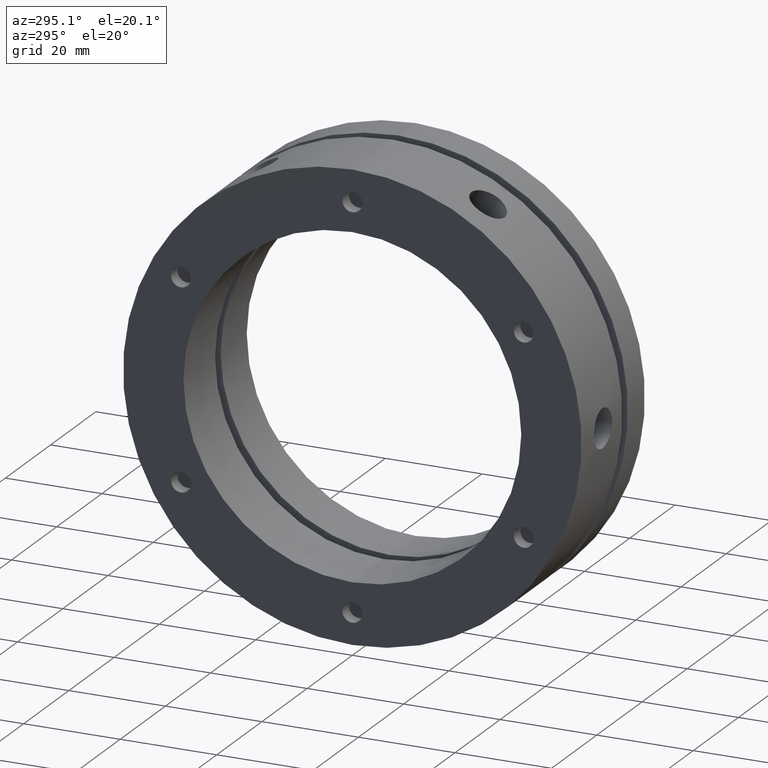
[diagram: clean part render]
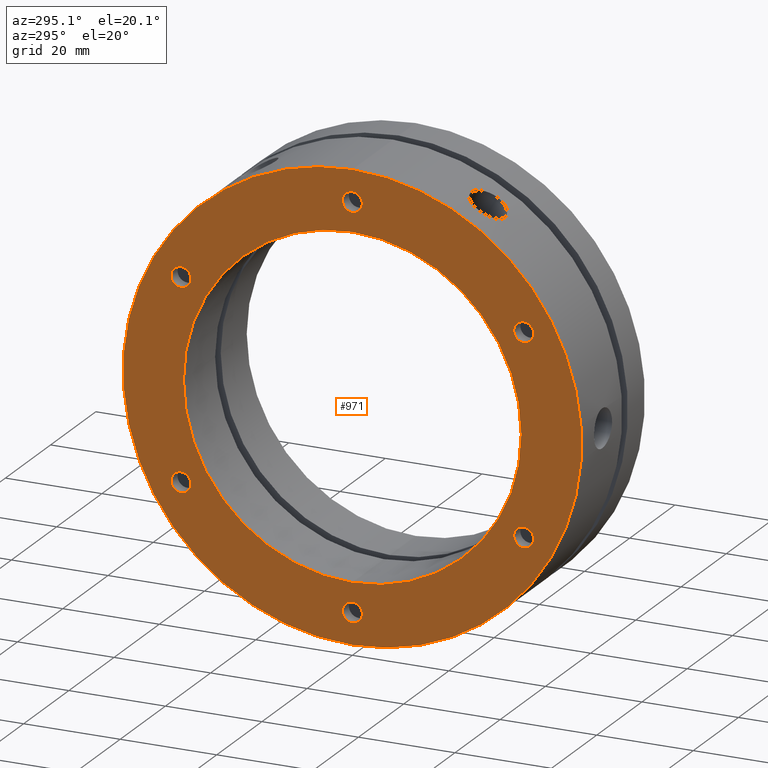
[diagram: same view with one face highlighted and labeled with its STEP entity id]
A machine part, auxiliary view. The second image highlights one B-rep face of the part: STEP entity #971.
In plain terms, the highlighted planar face has unit normal (-1, 0, 0).
Its self-contained STEP definition (entity closure, byte-faithful):
#39 = VERTEX_POINT ( 'NONE', #1383 ) ;
#50 = VERTEX_POINT ( 'NONE', #1386 ) ;
#54 = VERTEX_POINT ( 'NONE', #1385 ) ;
#75 = VERTEX_POINT ( 'NONE', #1402 ) ;
#101 = VERTEX_POINT ( 'NONE', #1426 ) ;
#117 = VERTEX_POINT ( 'NONE', #1440 ) ;
#127 = VERTEX_POINT ( 'NONE', #1435 ) ;
#133 = VERTEX_POINT ( 'NONE', #1446 ) ;
#186 = VERTEX_POINT ( 'NONE', #1495 ) ;
#221 = VERTEX_POINT ( 'NONE', #1529 ) ;
#223 = VERTEX_POINT ( 'NONE', #1531 ) ;
#237 = VERTEX_POINT ( 'NONE', #1542 ) ;
#238 = VERTEX_POINT ( 'NONE', #1543 ) ;
#239 = VERTEX_POINT ( 'NONE', #1544 ) ;
#266 = VERTEX_POINT ( 'NONE', #1570 ) ;
#267 = VERTEX_POINT ( 'NONE', #1563 ) ;
#403 = AXIS2_PLACEMENT_3D ( 'NONE', #3826, #3827, #3828 ) ;
#412 = AXIS2_PLACEMENT_3D ( 'NONE', #3855, #3856, #3857 ) ;
#463 = AXIS2_PLACEMENT_3D ( 'NONE', #2323, #2325, #2332 ) ;
#971 = ADVANCED_FACE ( 'NONE', ( #3132, #3136, #3133, #3129, #3134, #3137, #3138, #3139 ), #2330, .T. ) ;
#1383 = CARTESIAN_POINT ( 'NONE',  ( -1.127570259384924600E-014, -6.661337999999999900E-015, -38.93300000000002800 ) ) ;
#1385 = CARTESIAN_POINT ( 'NONE',  ( -1.387778780781445700E-014, 0.0000000000000000000, -47.50000000000000000 ) ) ;
#1386 = CARTESIAN_POINT ( 'NONE',  ( -1.127570259384924600E-014, 35.50704155516203300, 22.56699999999999000 ) ) ;
#1402 = CARTESIAN_POINT ( 'NONE',  ( -1.127570259384924600E-014, -35.50704155516201900, -22.56700000000000700 ) ) ;
#1426 = CARTESIAN_POINT ( 'NONE',  ( -1.127570259384924600E-014, 35.50704155516199700, -18.43300000000003500 ) ) ;
#1435 = CARTESIAN_POINT ( 'NONE',  ( -1.127570259384924600E-014, -6.408203506616242300E-015, -43.06700000000002900 ) ) ;
#1440 = CARTESIAN_POINT ( 'NONE',  ( -1.040834085586084300E-014, 4.286263797015736500E-015, 35.00000000000000000 ) ) ;
#1446 = CARTESIAN_POINT ( 'NONE',  ( -1.127570259384924600E-014, 35.50704155516203300, 18.43299999999999300 ) ) ;
#1495 = CARTESIAN_POINT ( 'NONE',  ( -1.127570259384924600E-014, 35.50704155516199700, -22.56700000000003600 ) ) ;
#1529 = CARTESIAN_POINT ( 'NONE',  ( -1.127570259384924600E-014, -35.50704155516201900, -18.43300000000000700 ) ) ;
#1531 = CARTESIAN_POINT ( 'NONE',  ( -1.127570259384924600E-014, 2.531344933837580300E-016, 38.93300000000002800 ) ) ;
#1542 = CARTESIAN_POINT ( 'NONE',  ( -1.387778780781445700E-014, 5.817072295949928200E-015, 47.50000000000000000 ) ) ;
#1543 = CARTESIAN_POINT ( 'NONE',  ( -1.040834085586084300E-014, 0.0000000000000000000, -35.00000000000000000 ) ) ;
#1544 = CARTESIAN_POINT ( 'NONE',  ( -1.127570259384924600E-014, -35.50704155516201200, 22.56700000000002100 ) ) ;
#1563 = CARTESIAN_POINT ( 'NONE',  ( -1.127570259384924600E-014, 0.0000000000000000000, 43.06700000000002900 ) ) ;
#1570 = CARTESIAN_POINT ( 'NONE',  ( -1.127570259384924600E-014, -35.50704155516201200, 18.43300000000002100 ) ) ;
#1786 = CIRCLE ( 'NONE', #1900, 47.50000000000000000 ) ;
#1793 = CIRCLE ( 'NONE', #1903, 2.066999999999999300 ) ;
#1794 = CIRCLE ( 'NONE', #1902, 35.00000000000000000 ) ;
#1795 = CIRCLE ( 'NONE', #1904, 2.066999999999999300 ) ;
#1822 = CIRCLE ( 'NONE', #1930, 2.066999999999999300 ) ;
#1823 = CIRCLE ( 'NONE', #1933, 2.066999999999999300 ) ;
#1824 = CIRCLE ( 'NONE', #1932, 2.066999999999999300 ) ;
#1857 = CIRCLE ( 'NONE', #1942, 2.066999999999999300 ) ;
#1861 = CIRCLE ( 'NONE', #1943, 35.00000000000000000 ) ;
#1881 = CIRCLE ( 'NONE', #1947, 2.066999999999999300 ) ;
#1883 = CIRCLE ( 'NONE', #1949, 2.066999999999999300 ) ;
#1890 = CIRCLE ( 'NONE', #1951, 2.066999999999999300 ) ;
#1895 = CIRCLE ( 'NONE', #1953, 2.066999999999999300 ) ;
#1900 = AXIS2_PLACEMENT_3D ( 'NONE', #2705, #2706, #2707 ) ;
#1902 = AXIS2_PLACEMENT_3D ( 'NONE', #2809, #2810, #2811 ) ;
#1903 = AXIS2_PLACEMENT_3D ( 'NONE', #2812, #2813, #2814 ) ;
#1904 = AXIS2_PLACEMENT_3D ( 'NONE', #2815, #2816, #2817 ) ;
#1930 = AXIS2_PLACEMENT_3D ( 'NONE', #2894, #2895, #2896 ) ;
#1932 = AXIS2_PLACEMENT_3D ( 'NONE', #2900, #2901, #2902 ) ;
#1933 = AXIS2_PLACEMENT_3D ( 'NONE', #2903, #2904, #2905 ) ;
#1942 = AXIS2_PLACEMENT_3D ( 'NONE', #3689, #3690, #3691 ) ;
#1943 = AXIS2_PLACEMENT_3D ( 'NONE', #3693, #3694, #3695 ) ;
#1947 = AXIS2_PLACEMENT_3D ( 'NONE', #3719, #3720, #3721 ) ;
#1949 = AXIS2_PLACEMENT_3D ( 'NONE', #3727, #3728, #3729 ) ;
#1951 = AXIS2_PLACEMENT_3D ( 'NONE', #3739, #3740, #3741 ) ;
#1953 = AXIS2_PLACEMENT_3D ( 'NONE', #3748, #3749, #3750 ) ;
#1954 = AXIS2_PLACEMENT_3D ( 'NONE', #3752, #3753, #3754 ) ;
#2323 = CARTESIAN_POINT ( 'NONE',  ( -1.157234000000000000E-014, 41.25000000000000000, 0.0000000000000000000 ) ) ;
#2325 = DIRECTION ( 'NONE',  ( -1.000000000000000000, 0.0000000000000000000, 0.0000000000000000000 ) ) ;
#2330 = PLANE ( 'NONE',  #463 ) ;
#2332 = DIRECTION ( 'NONE',  ( 0.0000000000000000000, 0.0000000000000000000, 1.000000000000000000 ) ) ;
#2705 = CARTESIAN_POINT ( 'NONE',  ( -1.387778780781445700E-014, 0.0000000000000000000, 0.0000000000000000000 ) ) ;
#2706 = DIRECTION ( 'NONE',  ( 1.000000000000000000, 0.0000000000000000000, 0.0000000000000000000 ) ) ;
#2707 = DIRECTION ( 'NONE',  ( 0.0000000000000000000, 0.0000000000000000000, -1.000000000000000000 ) ) ;
#2809 = CARTESIAN_POINT ( 'NONE',  ( -1.040834085586084300E-014, 0.0000000000000000000, 0.0000000000000000000 ) ) ;
#2810 = DIRECTION ( 'NONE',  ( 1.000000000000000000, 0.0000000000000000000, 0.0000000000000000000 ) ) ;
#2811 = DIRECTION ( 'NONE',  ( 0.0000000000000000000, 0.0000000000000000000, -1.000000000000000000 ) ) ;
#2812 = CARTESIAN_POINT ( 'NONE',  ( -1.127570259384924600E-014, 0.0000000000000000000, 41.00000000000002800 ) ) ;
#2813 = DIRECTION ( 'NONE',  ( 1.000000000000000000, -0.0000000000000000000, -0.0000000000000000000 ) ) ;
#2814 = DIRECTION ( 'NONE',  ( 0.0000000000000000000, 0.0000000000000000000, 1.000000000000000000 ) ) ;
#2815 = CARTESIAN_POINT ( 'NONE',  ( -1.127570259384924600E-014, -35.50704155516201200, 20.50000000000002100 ) ) ;
#2816 = DIRECTION ( 'NONE',  ( 1.000000000000000000, -0.0000000000000000000, -0.0000000000000000000 ) ) ;
#2817 = DIRECTION ( 'NONE',  ( 0.0000000000000000000, 0.0000000000000000000, 1.000000000000000000 ) ) ;
#2894 = CARTESIAN_POINT ( 'NONE',  ( -1.127570259384924600E-014, -6.661337999999999900E-015, -41.00000000000002800 ) ) ;
#2895 = DIRECTION ( 'NONE',  ( 1.000000000000000000, -0.0000000000000000000, -0.0000000000000000000 ) ) ;
#2896 = DIRECTION ( 'NONE',  ( 0.0000000000000000000, 0.0000000000000000000, 1.000000000000000000 ) ) ;
#2900 = CARTESIAN_POINT ( 'NONE',  ( -1.127570259384924600E-014, -35.50704155516201900, -20.50000000000000700 ) ) ;
#2901 = DIRECTION ( 'NONE',  ( 1.000000000000000000, -0.0000000000000000000, -0.0000000000000000000 ) ) ;
#2902 = DIRECTION ( 'NONE',  ( 0.0000000000000000000, 0.0000000000000000000, 1.000000000000000000 ) ) ;
#2903 = CARTESIAN_POINT ( 'NONE',  ( -1.127570259384924600E-014, 35.50704155516199700, -20.50000000000003600 ) ) ;
#2904 = DIRECTION ( 'NONE',  ( 1.000000000000000000, -0.0000000000000000000, -0.0000000000000000000 ) ) ;
#2905 = DIRECTION ( 'NONE',  ( 0.0000000000000000000, 0.0000000000000000000, 1.000000000000000000 ) ) ;
#3129 = FACE_BOUND ( 'NONE', #3380, .T. ) ;
#3132 = FACE_BOUND ( 'NONE', #3384, .T. ) ;
#3133 = FACE_BOUND ( 'NONE', #3381, .T. ) ;
#3134 = FACE_BOUND ( 'NONE', #3379, .T. ) ;
#3136 = FACE_BOUND ( 'NONE', #3378, .T. ) ;
#3137 = FACE_BOUND ( 'NONE', #3385, .T. ) ;
#3138 = FACE_BOUND ( 'NONE', #3386, .T. ) ;
#3139 = FACE_OUTER_BOUND ( 'NONE', #3387, .T. ) ;
#3378 = EDGE_LOOP ( 'NONE', ( #4587, #4586 ) ) ;
#3379 = EDGE_LOOP ( 'NONE', ( #4580, #4578 ) ) ;
#3380 = EDGE_LOOP ( 'NONE', ( #4582, #4581 ) ) ;
#3381 = EDGE_LOOP ( 'NONE', ( #4584, #4583 ) ) ;
#3384 = EDGE_LOOP ( 'NONE', ( #4590, #4589 ) ) ;
#3385 = EDGE_LOOP ( 'NONE', ( #4577, #4573 ) ) ;
#3386 = EDGE_LOOP ( 'NONE', ( #4572, #4571 ) ) ;
#3387 = EDGE_LOOP ( 'NONE', ( #4569, #4568 ) ) ;
#3464 = EDGE_CURVE ( 'NONE', #237, #54, #1786, .T. ) ;
#3469 = EDGE_CURVE ( 'NONE', #238, #117, #1794, .T. ) ;
#3470 = EDGE_CURVE ( 'NONE', #223, #267, #1793, .T. ) ;
#3471 = EDGE_CURVE ( 'NONE', #266, #239, #1795, .T. ) ;
#3497 = EDGE_CURVE ( 'NONE', #127, #39, #1822, .T. ) ;
#3499 = EDGE_CURVE ( 'NONE', #75, #221, #1824, .T. ) ;
#3500 = EDGE_CURVE ( 'NONE', #186, #101, #1823, .T. ) ;
#3689 = CARTESIAN_POINT ( 'NONE',  ( -1.127570259384924600E-014, 35.50704155516203300, 20.49999999999998900 ) ) ;
#3690 = DIRECTION ( 'NONE',  ( 1.000000000000000000, -0.0000000000000000000, -0.0000000000000000000 ) ) ;
#3691 = DIRECTION ( 'NONE',  ( 0.0000000000000000000, 0.0000000000000000000, 1.000000000000000000 ) ) ;
#3693 = CARTESIAN_POINT ( 'NONE',  ( -1.040834085586084300E-014, 0.0000000000000000000, 0.0000000000000000000 ) ) ;
#3694 = DIRECTION ( 'NONE',  ( 1.000000000000000000, 0.0000000000000000000, 0.0000000000000000000 ) ) ;
#3695 = DIRECTION ( 'NONE',  ( 0.0000000000000000000, 0.0000000000000000000, -1.000000000000000000 ) ) ;
#3719 = CARTESIAN_POINT ( 'NONE',  ( -1.127570259384924600E-014, 35.50704155516199700, -20.50000000000003600 ) ) ;
#3720 = DIRECTION ( 'NONE',  ( 1.000000000000000000, -0.0000000000000000000, -0.0000000000000000000 ) ) ;
#3721 = DIRECTION ( 'NONE',  ( 0.0000000000000000000, 0.0000000000000000000, 1.000000000000000000 ) ) ;
#3727 = CARTESIAN_POINT ( 'NONE',  ( -1.127570259384924600E-014, -6.661337999999999900E-015, -41.00000000000002800 ) ) ;
#3728 = DIRECTION ( 'NONE',  ( 1.000000000000000000, -0.0000000000000000000, -0.0000000000000000000 ) ) ;
#3729 = DIRECTION ( 'NONE',  ( 0.0000000000000000000, 0.0000000000000000000, 1.000000000000000000 ) ) ;
#3739 = CARTESIAN_POINT ( 'NONE',  ( -1.127570259384924600E-014, -35.50704155516201900, -20.50000000000000700 ) ) ;
#3740 = DIRECTION ( 'NONE',  ( 1.000000000000000000, -0.0000000000000000000, -0.0000000000000000000 ) ) ;
#3741 = DIRECTION ( 'NONE',  ( 0.0000000000000000000, 0.0000000000000000000, 1.000000000000000000 ) ) ;
#3748 = CARTESIAN_POINT ( 'NONE',  ( -1.127570259384924600E-014, 0.0000000000000000000, 41.00000000000002800 ) ) ;
#3749 = DIRECTION ( 'NONE',  ( 1.000000000000000000, -0.0000000000000000000, -0.0000000000000000000 ) ) ;
#3750 = DIRECTION ( 'NONE',  ( 0.0000000000000000000, 0.0000000000000000000, 1.000000000000000000 ) ) ;
#3752 = CARTESIAN_POINT ( 'NONE',  ( -1.127570259384924600E-014, -35.50704155516201200, 20.50000000000002100 ) ) ;
#3753 = DIRECTION ( 'NONE',  ( 1.000000000000000000, -0.0000000000000000000, -0.0000000000000000000 ) ) ;
#3754 = DIRECTION ( 'NONE',  ( 0.0000000000000000000, 0.0000000000000000000, 1.000000000000000000 ) ) ;
#3826 = CARTESIAN_POINT ( 'NONE',  ( -1.387778780781445700E-014, 0.0000000000000000000, 0.0000000000000000000 ) ) ;
#3827 = DIRECTION ( 'NONE',  ( 1.000000000000000000, 0.0000000000000000000, 0.0000000000000000000 ) ) ;
#3828 = DIRECTION ( 'NONE',  ( 0.0000000000000000000, 0.0000000000000000000, -1.000000000000000000 ) ) ;
#3855 = CARTESIAN_POINT ( 'NONE',  ( -1.127570259384924600E-014, 35.50704155516203300, 20.49999999999998900 ) ) ;
#3856 = DIRECTION ( 'NONE',  ( 1.000000000000000000, -0.0000000000000000000, -0.0000000000000000000 ) ) ;
#3857 = DIRECTION ( 'NONE',  ( 0.0000000000000000000, 0.0000000000000000000, 1.000000000000000000 ) ) ;
#4284 = CIRCLE ( 'NONE', #1954, 2.066999999999999300 ) ;
#4322 = CIRCLE ( 'NONE', #403, 47.50000000000000000 ) ;
#4347 = CIRCLE ( 'NONE', #412, 2.066999999999999300 ) ;
#4568 = ORIENTED_EDGE ( 'NONE', *, *, #3464, .F. ) ;
#4569 = ORIENTED_EDGE ( 'NONE', *, *, #4708, .F. ) ;
#4571 = ORIENTED_EDGE ( 'NONE', *, *, #4718, .T. ) ;
#4572 = ORIENTED_EDGE ( 'NONE', *, *, #4626, .T. ) ;
#4573 = ORIENTED_EDGE ( 'NONE', *, *, #3500, .T. ) ;
#4577 = ORIENTED_EDGE ( 'NONE', *, *, #4640, .T. ) ;
#4578 = ORIENTED_EDGE ( 'NONE', *, *, #3497, .T. ) ;
#4580 = ORIENTED_EDGE ( 'NONE', *, *, #4642, .T. ) ;
#4581 = ORIENTED_EDGE ( 'NONE', *, *, #3499, .T. ) ;
#4582 = ORIENTED_EDGE ( 'NONE', *, *, #4647, .T. ) ;
#4583 = ORIENTED_EDGE ( 'NONE', *, *, #3471, .T. ) ;
#4584 = ORIENTED_EDGE ( 'NONE', *, *, #4652, .T. ) ;
#4586 = ORIENTED_EDGE ( 'NONE', *, *, #3470, .T. ) ;
#4587 = ORIENTED_EDGE ( 'NONE', *, *, #4650, .T. ) ;
#4589 = ORIENTED_EDGE ( 'NONE', *, *, #4628, .T. ) ;
#4590 = ORIENTED_EDGE ( 'NONE', *, *, #3469, .T. ) ;
#4626 = EDGE_CURVE ( 'NONE', #50, #133, #1857, .T. ) ;
#4628 = EDGE_CURVE ( 'NONE', #117, #238, #1861, .T. ) ;
#4640 = EDGE_CURVE ( 'NONE', #101, #186, #1881, .T. ) ;
#4642 = EDGE_CURVE ( 'NONE', #39, #127, #1883, .T. ) ;
#4647 = EDGE_CURVE ( 'NONE', #221, #75, #1890, .T. ) ;
#4650 = EDGE_CURVE ( 'NONE', #267, #223, #1895, .T. ) ;
#4652 = EDGE_CURVE ( 'NONE', #239, #266, #4284, .T. ) ;
#4708 = EDGE_CURVE ( 'NONE', #54, #237, #4322, .T. ) ;
#4718 = EDGE_CURVE ( 'NONE', #133, #50, #4347, .T. ) ;